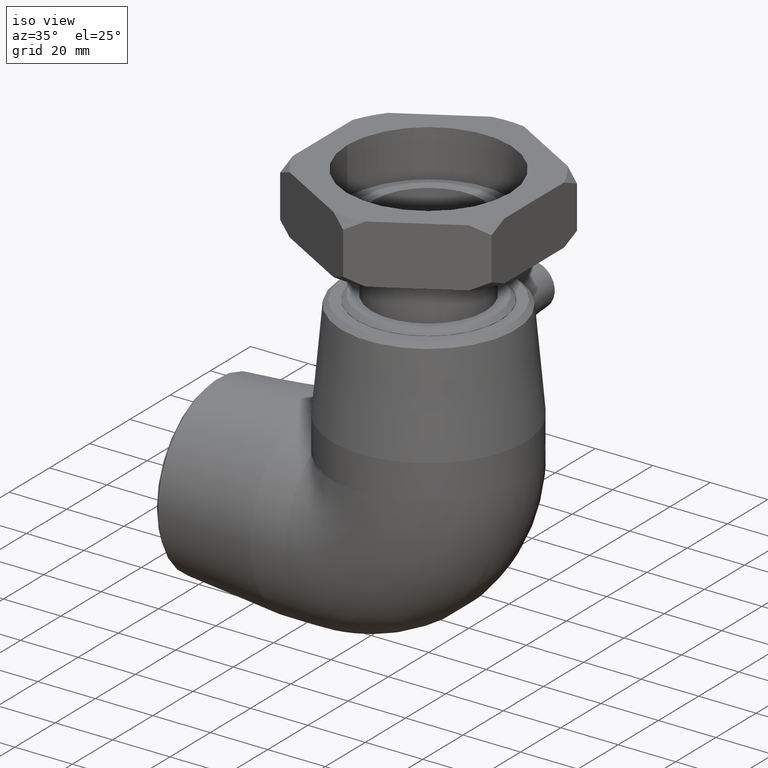
[diagram: clean part render]
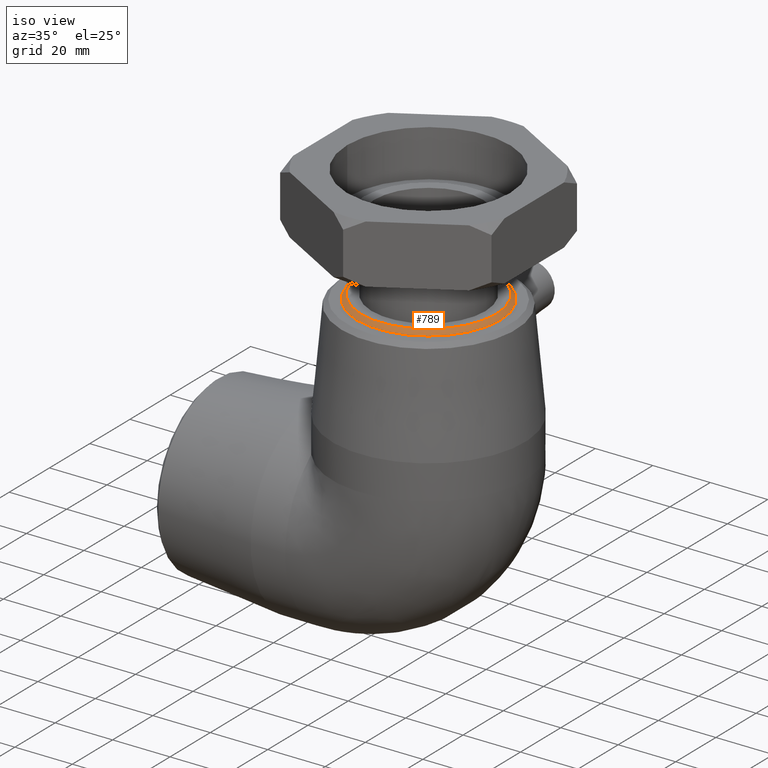
[diagram: same view with one face highlighted and labeled with its STEP entity id]
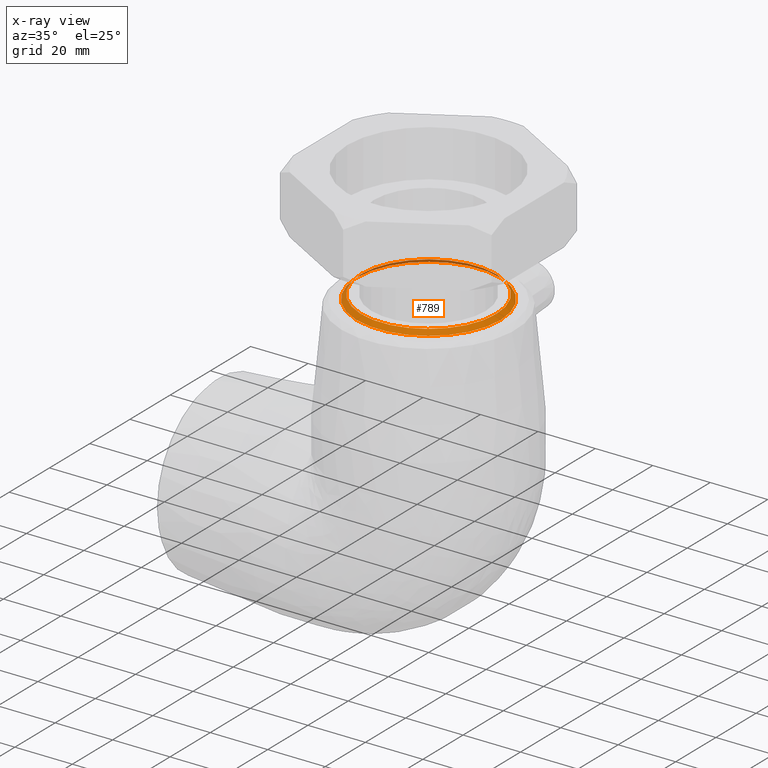
[diagram: x-ray of the same camera — body ghosted, the highlighted face saturated]
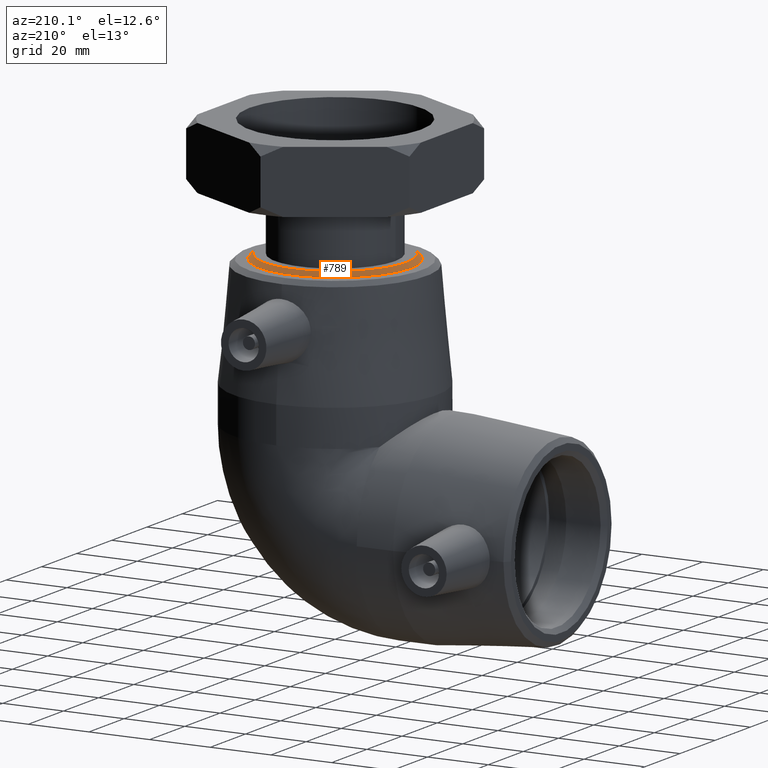
[diagram: same view with one face highlighted and labeled with its STEP entity id]
A machine part, iso view. The second image highlights one B-rep face of the part: STEP entity #789.
The next image is the same camera in x-ray: the body ghosted, the highlighted face saturated — about 17% of this face is hidden behind the body in this view.
A second angle (auxiliary view) of the same face is appended — the face is thin or edge-on in the first view.
In plain terms, the highlighted conical surface has half-angle 45 deg.
Its self-contained STEP definition (entity closure, byte-faithful):
#122=FACE_BOUND('',#249,.T.);
#182=FACE_OUTER_BOUND('',#248,.T.);
#248=EDGE_LOOP('',(#666));
#249=EDGE_LOOP('',(#667));
#340=CIRCLE('',#872,23.5);
#341=CIRCLE('',#873,25.);
#416=VERTEX_POINT('',#1363);
#417=VERTEX_POINT('',#1365);
#512=EDGE_CURVE('',#416,#416,#340,.T.);
#513=EDGE_CURVE('',#417,#417,#341,.T.);
#666=ORIENTED_EDGE('',*,*,#512,.T.);
#667=ORIENTED_EDGE('',*,*,#513,.T.);
#757=CONICAL_SURFACE('',#871,24.25,44.9999999999997);
#789=ADVANCED_FACE('',(#182,#122),#757,.T.);
#871=AXIS2_PLACEMENT_3D('',#1362,#1044,#1045);
#872=AXIS2_PLACEMENT_3D('',#1364,#1046,#1047);
#873=AXIS2_PLACEMENT_3D('',#1366,#1048,#1049);
#1044=DIRECTION('center_axis',(-2.38437159651042E-16,0.,-1.));
#1045=DIRECTION('ref_axis',(1.,0.,-2.17751893419114E-16));
#1046=DIRECTION('center_axis',(-2.3843715965104E-16,0.,-1.));
#1047=DIRECTION('ref_axis',(1.,0.,-2.3843715965104E-16));
#1048=DIRECTION('center_axis',(2.3843715965104E-16,0.,1.));
#1049=DIRECTION('ref_axis',(1.,0.,-1.98307743161102E-16));
#1362=CARTESIAN_POINT('Origin',(1.79757774660919E-14,0.,75.39));
#1363=CARTESIAN_POINT('',(-23.5,2.87791997799628E-15,76.14));
#1364=CARTESIAN_POINT('Origin',(1.81546053358302E-14,0.,76.14));
#1365=CARTESIAN_POINT('',(-25.,-3.06161699786838E-15,74.64));
#1366=CARTESIAN_POINT('Origin',(1.77969495963536E-14,0.,74.64));